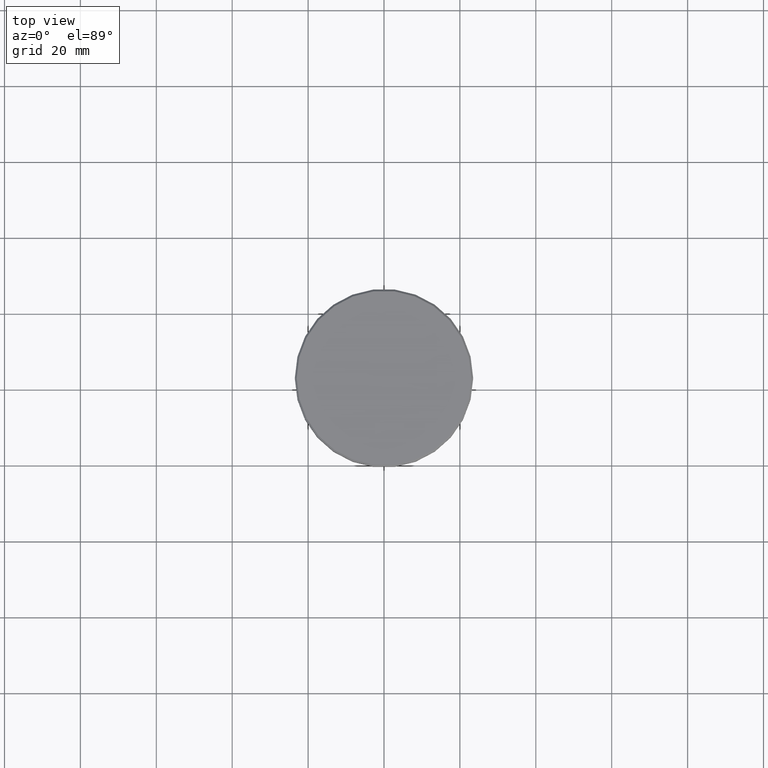
[diagram: clean part render]
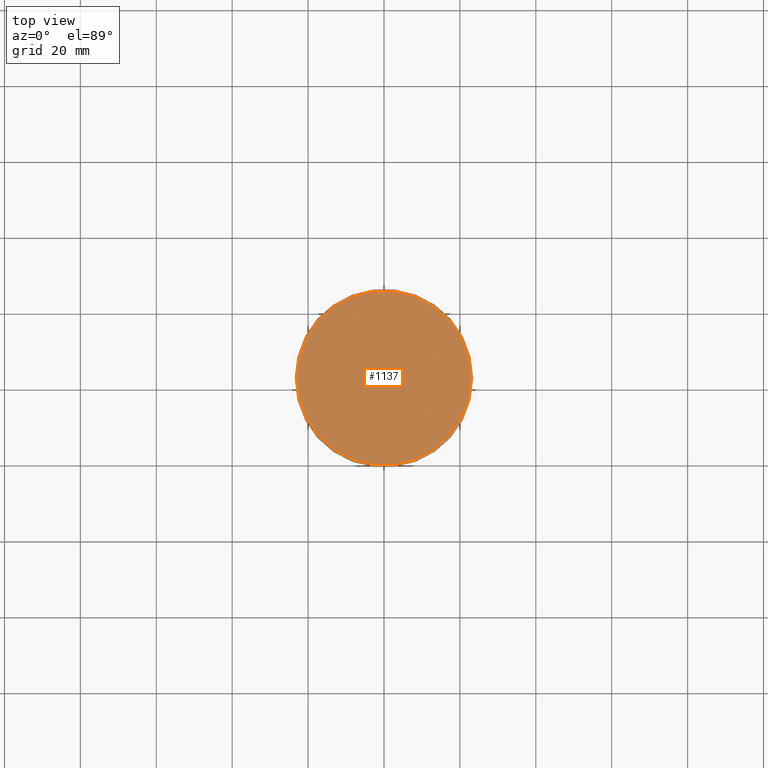
[diagram: same view with one face highlighted and labeled with its STEP entity id]
A machine part, top view. The second image highlights one B-rep face of the part: STEP entity #1137.
In plain terms, the highlighted planar face has unit normal (0, -0, 1).
Its self-contained STEP definition (entity closure, byte-faithful):
#30 = CARTESIAN_POINT ( 'NONE',  ( -23.00000000000002487, 0.000000000000000000, 0.000000000000000000 ) ) ;
#46 = EDGE_CURVE ( 'NONE', #656, #1024, #70, .T. ) ;
#70 = CIRCLE ( 'NONE', #535, 23.00000000000002487 ) ;
#158 = AXIS2_PLACEMENT_3D ( 'NONE', #1026, #665, #933 ) ;
#203 = DIRECTION ( 'NONE',  ( -0.000000000000000000, -0.000000000000000000, 1.000000000000000000 ) ) ;
#252 = CARTESIAN_POINT ( 'NONE',  ( 0.000000000000000000, 0.000000000000000000, 0.000000000000000000 ) ) ;
#374 = DIRECTION ( 'NONE',  ( 1.000000000000000000, 0.000000000000000000, 0.000000000000000000 ) ) ;
#428 = EDGE_CURVE ( 'NONE', #1024, #656, #1047, .T. ) ;
#502 = EDGE_LOOP ( 'NONE', ( #722, #650 ) ) ;
#535 = AXIS2_PLACEMENT_3D ( 'NONE', #553, #203, #374 ) ;
#553 = CARTESIAN_POINT ( 'NONE',  ( 0.000000000000000000, 0.000000000000000000, 0.000000000000000000 ) ) ;
#571 = DIRECTION ( 'NONE',  ( -0.000000000000000000, -0.000000000000000000, 1.000000000000000000 ) ) ;
#576 = DIRECTION ( 'NONE',  ( 1.000000000000000000, 0.000000000000000000, 0.000000000000000000 ) ) ;
#645 = CARTESIAN_POINT ( 'NONE',  ( 23.00000000000002487, 2.847303808017597717E-15, 0.000000000000000000 ) ) ;
#650 = ORIENTED_EDGE ( 'NONE', *, *, #428, .T. ) ;
#656 = VERTEX_POINT ( 'NONE', #30 ) ;
#665 = DIRECTION ( 'NONE',  ( 0.000000000000000000, -0.000000000000000000, 1.000000000000000000 ) ) ;
#709 = AXIS2_PLACEMENT_3D ( 'NONE', #252, #571, #576 ) ;
#722 = ORIENTED_EDGE ( 'NONE', *, *, #46, .T. ) ;
#785 = PLANE ( 'NONE',  #158 ) ;
#933 = DIRECTION ( 'NONE',  ( 1.000000000000000000, 0.000000000000000000, 0.000000000000000000 ) ) ;
#956 = FACE_OUTER_BOUND ( 'NONE', #502, .T. ) ;
#1024 = VERTEX_POINT ( 'NONE', #645 ) ;
#1026 = CARTESIAN_POINT ( 'NONE',  ( 0.000000000000000000, 0.000000000000000000, 0.000000000000000000 ) ) ;
#1047 = CIRCLE ( 'NONE', #709, 23.00000000000002487 ) ;
#1137 = ADVANCED_FACE ( 'NONE', ( #956 ), #785, .T. ) ;